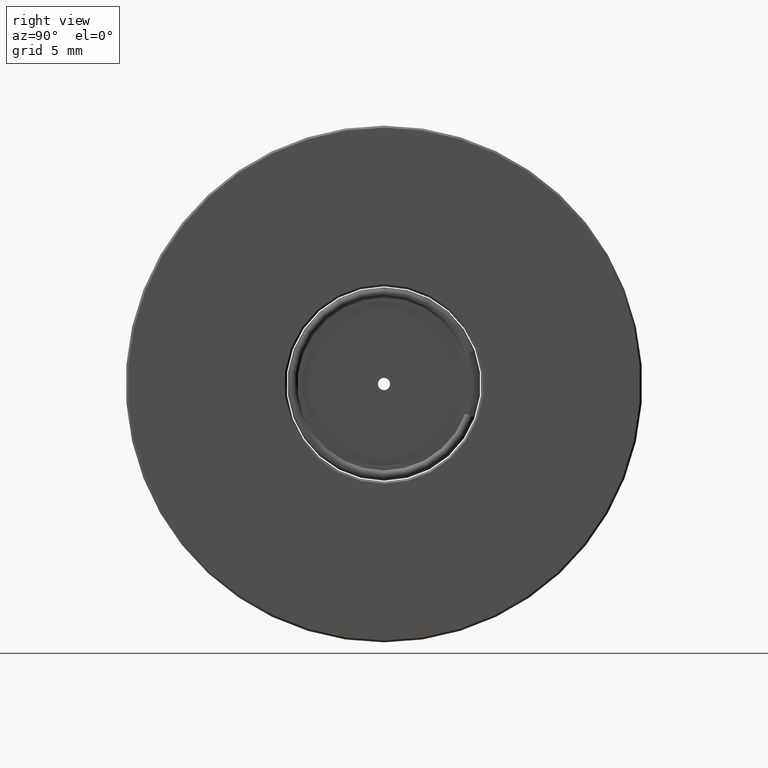
[diagram: clean part render]
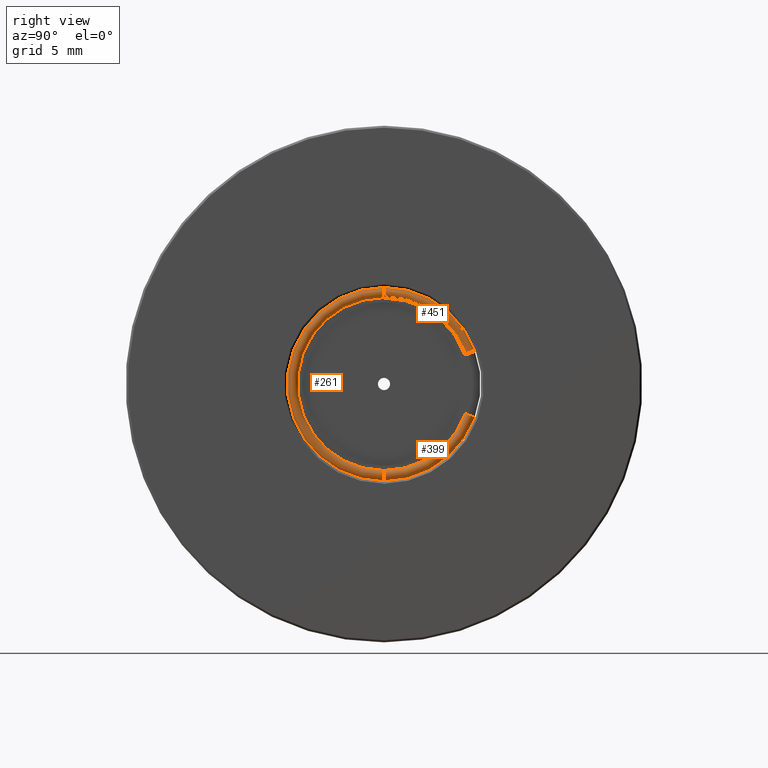
[diagram: same view with one multi-face feature highlighted, each face labeled with its STEP entity id]
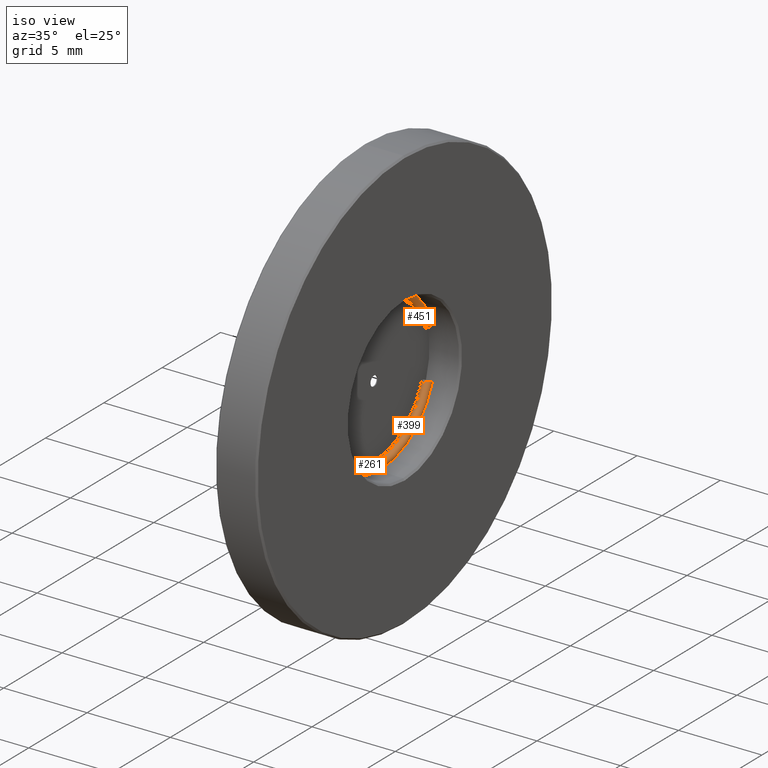
[diagram: same view with one multi-face feature highlighted, each face labeled with its STEP entity id]
A machine part, right view. The highlighted faces form ONE feature: a constant-radius fillet chain: 3 tangent blend faces with common blend radius 0.25 mm. The faces share edges in the B-rep.
A second angle (iso view) of the same feature is appended — it is thin or edge-on in the first view.
Their STEP definitions:
[1] entity #451 (Torus):
#9 = DIRECTION ( 'NONE',  ( 1.000000000000000000, -2.997602166487921476E-15, -1.332267629309052594E-15 ) ) ;
#49 = DIRECTION ( 'NONE',  ( 1.000000000000000000, -2.997602166487921476E-15, -1.332267629309052594E-15 ) ) ;
#62 = EDGE_LOOP ( 'NONE', ( #444, #156, #789, #326 ) ) ;
#72 = VERTEX_POINT ( 'NONE', #401 ) ;
#99 = VERTEX_POINT ( 'NONE', #740 ) ;
#108 = DIRECTION ( 'NONE',  ( -1.054662389422715826E-17, 0.3420201432638126371, -0.9396926208084220855 ) ) ;
#138 = CARTESIAN_POINT ( 'NONE',  ( -4.034863851253239986, 1.436758841085141514, 25.39999999999998437 ) ) ;
#155 = CIRCLE ( 'NONE', #807, 0.2500000000000002220 ) ;
#156 = ORIENTED_EDGE ( 'NONE', *, *, #745, .T. ) ;
#173 = DIRECTION ( 'NONE',  ( 3.469446951953614189E-15, -0.9396926208084209753, -0.3420201432638159122 ) ) ;
#174 = AXIS2_PLACEMENT_3D ( 'NONE', #138, #9, #583 ) ;
#211 = EDGE_CURVE ( 'NONE', #239, #634, #213, .T. ) ;
#213 = CIRCLE ( 'NONE', #335, 0.2500000000000000000 ) ;
#231 = AXIS2_PLACEMENT_3D ( 'NONE', #816, #49, #497 ) ;
#237 = TOROIDAL_SURFACE ( 'NONE', #680, 4.500000000000001776, 0.2499999999999994726 ) ;
#239 = VERTEX_POINT ( 'NONE', #686 ) ;
#254 = CARTESIAN_POINT ( 'NONE',  ( -4.034863851253239986, 1.436758841085141514, 25.39999999999998437 ) ) ;
#326 = ORIENTED_EDGE ( 'NONE', *, *, #353, .F. ) ;
#328 = DIRECTION ( 'NONE',  ( 0.0000000000000000000, 6.581540867855999654E-11, 1.000000000000000000 ) ) ;
#335 = AXIS2_PLACEMENT_3D ( 'NONE', #679, #108, #173 ) ;
#353 = EDGE_CURVE ( 'NONE', #634, #72, #405, .T. ) ;
#373 = CARTESIAN_POINT ( 'NONE',  ( -4.034863851253226663, 5.430452479520951670, 26.85358560887114621 ) ) ;
#401 = CARTESIAN_POINT ( 'NONE',  ( -4.034863851253237321, 1.436758841364856876, 29.64999999999998437 ) ) ;
#405 = CIRCLE ( 'NONE', #231, 4.250000000000001776 ) ;
#444 = ORIENTED_EDGE ( 'NONE', *, *, #211, .F. ) ;
#451 = ADVANCED_FACE ( 'NONE', ( #743 ), #237, .T. ) ;
#496 = CIRCLE ( 'NONE', #174, 4.750000000000000888 ) ;
#497 = DIRECTION ( 'NONE',  ( 3.061276722312011406E-15, 1.000000000000000000, 0.0000000000000000000 ) ) ;
#571 = DIRECTION ( 'NONE',  ( -1.332267629506340790E-15, -6.581527172670668233E-11, -1.000000000000000000 ) ) ;
#583 = DIRECTION ( 'NONE',  ( 2.921639538487253472E-15, 1.000000000000000000, 0.0000000000000000000 ) ) ;
#597 = DIRECTION ( 'NONE',  ( 2.997602166400237614E-15, 1.000000000000000000, -6.581539236536173561E-11 ) ) ;
#634 = VERTEX_POINT ( 'NONE', #373 ) ;
#679 = CARTESIAN_POINT ( 'NONE',  ( -4.034863851253261302, 5.665375634723053722, 26.93909064468709857 ) ) ;
#680 = AXIS2_PLACEMENT_3D ( 'NONE', #254, #781, #571 ) ;
#686 = CARTESIAN_POINT ( 'NONE',  ( -4.034863851253225775, 5.900298789925161103, 27.02459568050305094 ) ) ;
#720 = CARTESIAN_POINT ( 'NONE',  ( -4.034863851253245315, 1.436758841381310825, 29.89999999999998437 ) ) ;
#740 = CARTESIAN_POINT ( 'NONE',  ( -4.034863851253234657, 1.436758841397764552, 30.14999999999998437 ) ) ;
#743 = FACE_OUTER_BOUND ( 'NONE', #62, .T. ) ;
#745 = EDGE_CURVE ( 'NONE', #239, #99, #496, .T. ) ;
#781 = DIRECTION ( 'NONE',  ( 1.000000000000000000, -2.997602166487921476E-15, -1.332267629309052594E-15 ) ) ;
#789 = ORIENTED_EDGE ( 'NONE', *, *, #798, .T. ) ;
#798 = EDGE_CURVE ( 'NONE', #99, #72, #155, .T. ) ;
#807 = AXIS2_PLACEMENT_3D ( 'NONE', #720, #597, #328 ) ;
#816 = CARTESIAN_POINT ( 'NONE',  ( -4.034863851253239986, 1.436758841085141514, 25.39999999999998437 ) ) ;
[2] entity #261 (Torus):
#11 = CARTESIAN_POINT ( 'NONE',  ( -4.034863851253234657, 1.436758840788972647, 20.89999999999998437 ) ) ;
#36 = AXIS2_PLACEMENT_3D ( 'NONE', #11, #830, #701 ) ;
#43 = AXIS2_PLACEMENT_3D ( 'NONE', #432, #245, #364 ) ;
#72 = VERTEX_POINT ( 'NONE', #401 ) ;
#97 = EDGE_CURVE ( 'NONE', #72, #143, #616, .T. ) ;
#99 = VERTEX_POINT ( 'NONE', #740 ) ;
#115 = ORIENTED_EDGE ( 'NONE', *, *, #537, .T. ) ;
#122 = DIRECTION ( 'NONE',  ( 2.921639538487253472E-15, 1.000000000000000000, 0.0000000000000000000 ) ) ;
#143 = VERTEX_POINT ( 'NONE', #749 ) ;
#155 = CIRCLE ( 'NONE', #807, 0.2500000000000002220 ) ;
#159 = DIRECTION ( 'NONE',  ( 3.061276722312011406E-15, 1.000000000000000000, 0.0000000000000000000 ) ) ;
#183 = CIRCLE ( 'NONE', #36, 0.2500000000000002220 ) ;
#201 = DIRECTION ( 'NONE',  ( 1.000000000000000000, -2.997602166487921476E-15, -1.332267629309052594E-15 ) ) ;
#227 = EDGE_LOOP ( 'NONE', ( #253, #115, #429, #755 ) ) ;
#245 = DIRECTION ( 'NONE',  ( 1.000000000000000000, -2.997602166487921476E-15, -1.332267629309052594E-15 ) ) ;
#253 = ORIENTED_EDGE ( 'NONE', *, *, #798, .F. ) ;
#261 = ADVANCED_FACE ( 'NONE', ( #454 ), #825, .T. ) ;
#327 = CIRCLE ( 'NONE', #417, 4.750000000000000888 ) ;
#328 = DIRECTION ( 'NONE',  ( 0.0000000000000000000, 6.581540867855999654E-11, 1.000000000000000000 ) ) ;
#347 = CARTESIAN_POINT ( 'NONE',  ( -4.034863851253239986, 1.436758841085141514, 25.39999999999998437 ) ) ;
#364 = DIRECTION ( 'NONE',  ( -1.332267629506340790E-15, -6.581527172670668233E-11, -1.000000000000000000 ) ) ;
#401 = CARTESIAN_POINT ( 'NONE',  ( -4.034863851253237321, 1.436758841364856876, 29.64999999999998437 ) ) ;
#417 = AXIS2_PLACEMENT_3D ( 'NONE', #437, #201, #122 ) ;
#424 = AXIS2_PLACEMENT_3D ( 'NONE', #347, #459, #159 ) ;
#429 = ORIENTED_EDGE ( 'NONE', *, *, #446, .T. ) ;
#432 = CARTESIAN_POINT ( 'NONE',  ( -4.034863851253239986, 1.436758841085141514, 25.39999999999998437 ) ) ;
#437 = CARTESIAN_POINT ( 'NONE',  ( -4.034863851253239986, 1.436758841085141514, 25.39999999999998437 ) ) ;
#446 = EDGE_CURVE ( 'NONE', #592, #143, #183, .T. ) ;
#454 = FACE_OUTER_BOUND ( 'NONE', #227, .T. ) ;
#459 = DIRECTION ( 'NONE',  ( 1.000000000000000000, -2.997602166487921476E-15, -1.332267629309052594E-15 ) ) ;
#537 = EDGE_CURVE ( 'NONE', #99, #592, #327, .T. ) ;
#592 = VERTEX_POINT ( 'NONE', #831 ) ;
#597 = DIRECTION ( 'NONE',  ( 2.997602166400237614E-15, 1.000000000000000000, -6.581539236536173561E-11 ) ) ;
#616 = CIRCLE ( 'NONE', #424, 4.250000000000001776 ) ;
#701 = DIRECTION ( 'NONE',  ( 0.0000000000000000000, -6.581540867855999654E-11, -1.000000000000000000 ) ) ;
#720 = CARTESIAN_POINT ( 'NONE',  ( -4.034863851253245315, 1.436758841381310825, 29.89999999999998437 ) ) ;
#740 = CARTESIAN_POINT ( 'NONE',  ( -4.034863851253234657, 1.436758841397764552, 30.14999999999998437 ) ) ;
#749 = CARTESIAN_POINT ( 'NONE',  ( -4.034863851253239986, 1.436758840805426596, 21.14999999999998437 ) ) ;
#755 = ORIENTED_EDGE ( 'NONE', *, *, #97, .F. ) ;
#798 = EDGE_CURVE ( 'NONE', #99, #72, #155, .T. ) ;
#807 = AXIS2_PLACEMENT_3D ( 'NONE', #720, #597, #328 ) ;
#825 = TOROIDAL_SURFACE ( 'NONE', #43, 4.500000000000001776, 0.2499999999999994726 ) ;
#830 = DIRECTION ( 'NONE',  ( -2.997602166400238009E-15, -1.000000000000000000, 6.581526990068181500E-11 ) ) ;
#831 = CARTESIAN_POINT ( 'NONE',  ( -4.034863851253246203, 1.436758840772518919, 20.64999999999998437 ) ) ;
[3] entity #399 (Torus):
#11 = CARTESIAN_POINT ( 'NONE',  ( -4.034863851253234657, 1.436758840788972647, 20.89999999999998437 ) ) ;
#36 = AXIS2_PLACEMENT_3D ( 'NONE', #11, #830, #701 ) ;
#107 = DIRECTION ( 'NONE',  ( 3.061276722312011406E-15, 1.000000000000000000, 0.0000000000000000000 ) ) ;
#132 = AXIS2_PLACEMENT_3D ( 'NONE', #381, #516, #648 ) ;
#135 = ORIENTED_EDGE ( 'NONE', *, *, #222, .F. ) ;
#143 = VERTEX_POINT ( 'NONE', #749 ) ;
#183 = CIRCLE ( 'NONE', #36, 0.2500000000000002220 ) ;
#195 = ORIENTED_EDGE ( 'NONE', *, *, #416, .T. ) ;
#205 = VERTEX_POINT ( 'NONE', #224 ) ;
#222 = EDGE_CURVE ( 'NONE', #143, #205, #696, .T. ) ;
#224 = CARTESIAN_POINT ( 'NONE',  ( -4.034863851253229328, 5.430452479329598070, 23.94641439060304933 ) ) ;
#260 = CARTESIAN_POINT ( 'NONE',  ( -4.034863851253229328, 5.900298789711298397, 23.77540431890929895 ) ) ;
#287 = CIRCLE ( 'NONE', #739, 4.750000000000000888 ) ;
#292 = DIRECTION ( 'NONE',  ( 1.000000000000000000, -2.997602166487921476E-15, -1.332267629309052594E-15 ) ) ;
#348 = AXIS2_PLACEMENT_3D ( 'NONE', #617, #292, #107 ) ;
#374 = DIRECTION ( 'NONE',  ( -1.332267629506340790E-15, -6.581527172670668233E-11, -1.000000000000000000 ) ) ;
#381 = CARTESIAN_POINT ( 'NONE',  ( -4.034863851253261302, 5.665375634520459336, 23.86090935475617059 ) ) ;
#383 = CARTESIAN_POINT ( 'NONE',  ( -4.034863851253239986, 1.436758841085141514, 25.39999999999998437 ) ) ;
#390 = AXIS2_PLACEMENT_3D ( 'NONE', #628, #493, #374 ) ;
#399 = ADVANCED_FACE ( 'NONE', ( #505 ), #560, .T. ) ;
#416 = EDGE_CURVE ( 'NONE', #592, #827, #287, .T. ) ;
#446 = EDGE_CURVE ( 'NONE', #592, #143, #183, .T. ) ;
#487 = ORIENTED_EDGE ( 'NONE', *, *, #731, .T. ) ;
#493 = DIRECTION ( 'NONE',  ( 1.000000000000000000, -2.997602166487921476E-15, -1.332267629309052594E-15 ) ) ;
#505 = FACE_OUTER_BOUND ( 'NONE', #808, .T. ) ;
#507 = DIRECTION ( 'NONE',  ( 2.921639538487253472E-15, 1.000000000000000000, 0.0000000000000000000 ) ) ;
#516 = DIRECTION ( 'NONE',  ( 2.305737067885818465E-15, -0.3420201433875043051, -0.9396926207634020978 ) ) ;
#560 = TOROIDAL_SURFACE ( 'NONE', #390, 4.500000000000001776, 0.2499999999999994726 ) ;
#575 = DIRECTION ( 'NONE',  ( 1.000000000000000000, -2.997602166487921476E-15, -1.332267629309052594E-15 ) ) ;
#592 = VERTEX_POINT ( 'NONE', #831 ) ;
#617 = CARTESIAN_POINT ( 'NONE',  ( -4.034863851253239986, 1.436758841085141514, 25.39999999999998437 ) ) ;
#628 = CARTESIAN_POINT ( 'NONE',  ( -4.034863851253239986, 1.436758841085141514, 25.39999999999998437 ) ) ;
#648 = DIRECTION ( 'NONE',  ( 3.469446951953611033E-15, -0.9396926207634005435, 0.3420201433875083574 ) ) ;
#676 = CIRCLE ( 'NONE', #132, 0.2500000000000002220 ) ;
#696 = CIRCLE ( 'NONE', #348, 4.250000000000001776 ) ;
#701 = DIRECTION ( 'NONE',  ( 0.0000000000000000000, -6.581540867855999654E-11, -1.000000000000000000 ) ) ;
#731 = EDGE_CURVE ( 'NONE', #827, #205, #676, .T. ) ;
#739 = AXIS2_PLACEMENT_3D ( 'NONE', #383, #575, #507 ) ;
#746 = ORIENTED_EDGE ( 'NONE', *, *, #446, .F. ) ;
#749 = CARTESIAN_POINT ( 'NONE',  ( -4.034863851253239986, 1.436758840805426596, 21.14999999999998437 ) ) ;
#808 = EDGE_LOOP ( 'NONE', ( #746, #195, #487, #135 ) ) ;
#827 = VERTEX_POINT ( 'NONE', #260 ) ;
#830 = DIRECTION ( 'NONE',  ( -2.997602166400238009E-15, -1.000000000000000000, 6.581526990068181500E-11 ) ) ;
#831 = CARTESIAN_POINT ( 'NONE',  ( -4.034863851253246203, 1.436758840772518919, 20.64999999999998437 ) ) ;